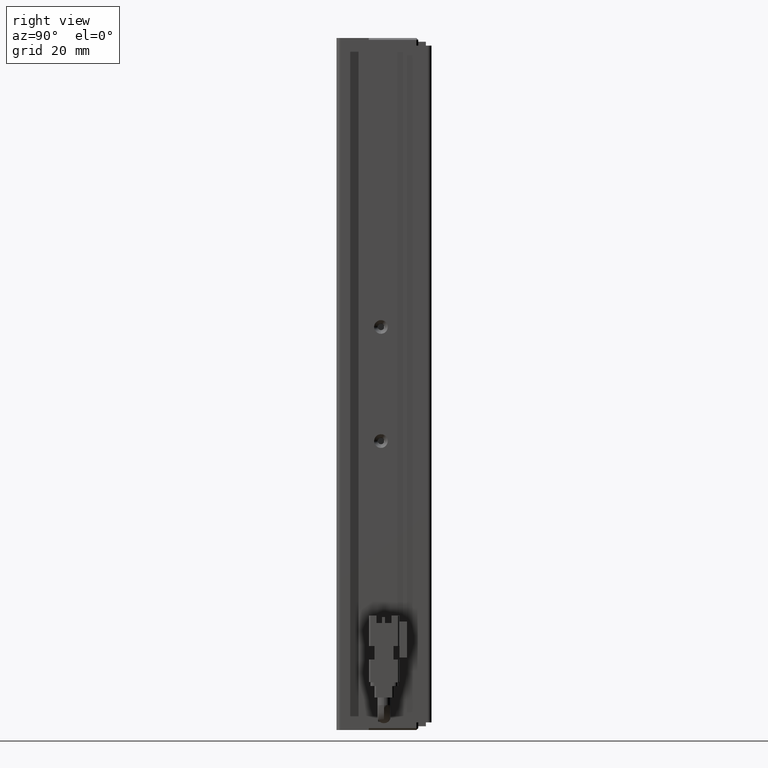
[diagram: clean part render]
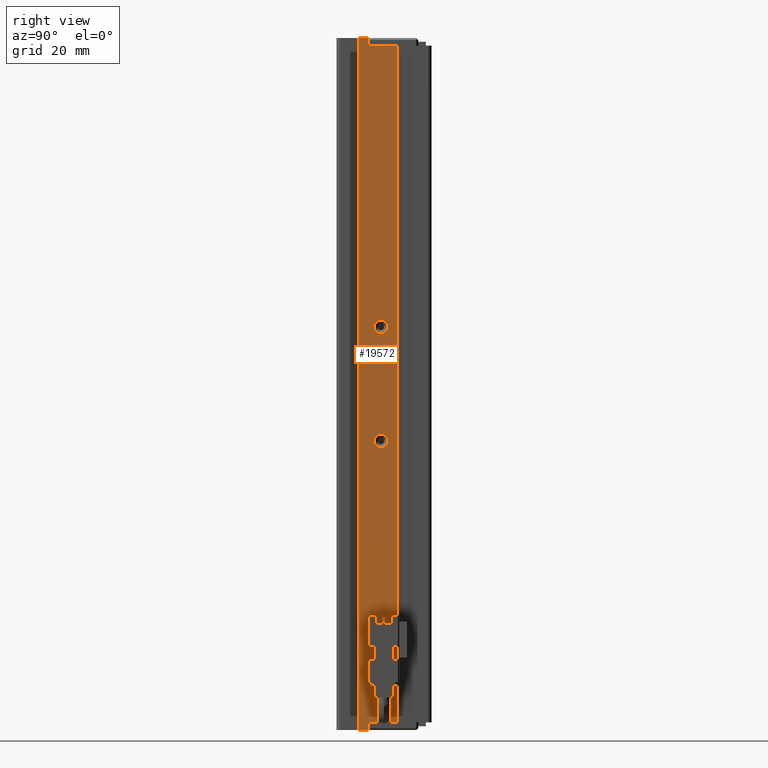
[diagram: same view with one face highlighted and labeled with its STEP entity id]
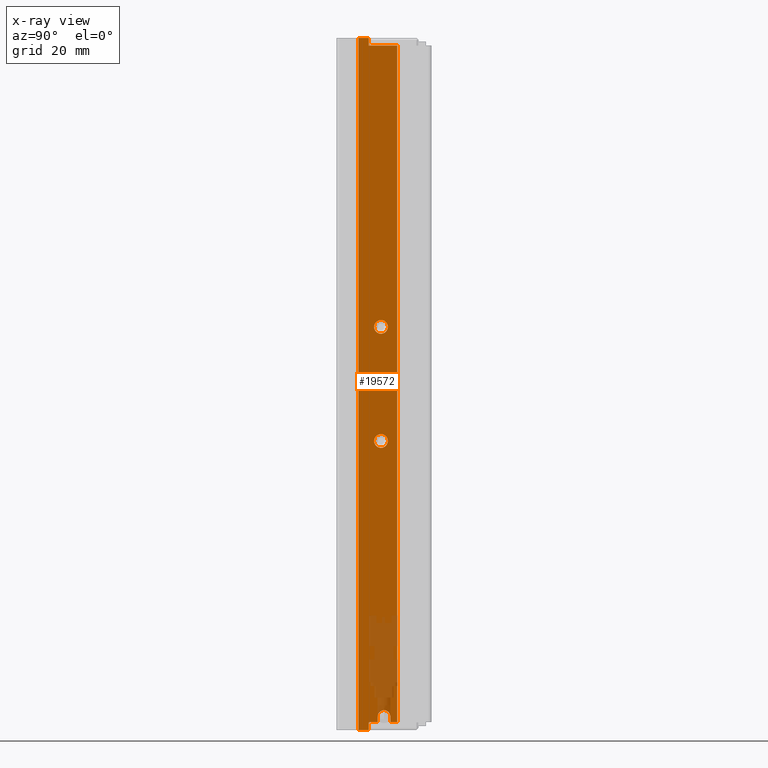
[diagram: x-ray of the same camera — body ghosted, the highlighted face saturated]
A machine part, right view. The second image highlights one B-rep face of the part: STEP entity #19572.
The next image is the same camera in x-ray: the body ghosted, the highlighted face saturated — about 8% of this face is hidden behind the body in this view.
In plain terms, the highlighted planar face has unit normal (-1, 0, 0).
Its self-contained STEP definition (entity closure, byte-faithful):
#37 = VERTEX_POINT ( 'NONE', #40231 ) ;
#223 = CARTESIAN_POINT ( 'NONE',  ( 55.92537974683542500, 26.69594479660386800, -204.0000000000000300 ) ) ;
#698 = DIRECTION ( 'NONE',  ( -0.0000000000000000000, 0.0000000000000000000, 1.000000000000000000 ) ) ;
#728 = VECTOR ( 'NONE', #2167, 1000.000000000000000 ) ;
#885 = DIRECTION ( 'NONE',  ( 1.394554826879015700E-015, 1.000000000000000000, -0.0000000000000000000 ) ) ;
#933 = DIRECTION ( 'NONE',  ( -0.0000000000000000000, 0.0000000000000000000, 1.000000000000000000 ) ) ;
#1114 = CARTESIAN_POINT ( 'NONE',  ( 55.92537974687862600, 22.39594479660386700, -101.8000000000734000 ) ) ;
#1247 = VECTOR ( 'NONE', #9128, 1000.000000000000000 ) ;
#1529 = VERTEX_POINT ( 'NONE', #10067 ) ;
#1636 = VERTEX_POINT ( 'NONE', #36715 ) ;
#1970 = CARTESIAN_POINT ( 'NONE',  ( 55.92537974687862600, 22.39594479660386700, -98.19999999992660400 ) ) ;
#2167 = DIRECTION ( 'NONE',  ( -0.0000000000000000000, -2.238352872228144400E-015, -1.000000000000000000 ) ) ;
#2511 = VERTEX_POINT ( 'NONE', #36615 ) ;
#2731 = LINE ( 'NONE', #40976, #10506 ) ;
#4946 = VERTEX_POINT ( 'NONE', #26370 ) ;
#5529 = DIRECTION ( 'NONE',  ( -1.394554826879015700E-015, -1.000000000000000000, 0.0000000000000000000 ) ) ;
#5931 = CARTESIAN_POINT ( 'NONE',  ( 55.92537974683541100, 7.083797468354417100, -24.00000000000000700 ) ) ;
#6216 = CARTESIAN_POINT ( 'NONE',  ( 55.92537974683539700, 21.54594479660386200, -202.4500000000000200 ) ) ;
#6323 = CARTESIAN_POINT ( 'NONE',  ( 55.92537974683543200, 19.19594479660386500, -204.0000000000000300 ) ) ;
#6339 = CARTESIAN_POINT ( 'NONE',  ( 55.92537974683543900, 26.69594479660386800, -24.00000000000000700 ) ) ;
#7905 = VERTEX_POINT ( 'NONE', #6323 ) ;
#8090 = LINE ( 'NONE', #9554, #25863 ) ;
#8138 = CARTESIAN_POINT ( 'NONE',  ( 55.92537974683539700, 23.19594479660386500, -202.4500000000000200 ) ) ;
#8381 = LINE ( 'NONE', #32162, #26144 ) ;
#8940 = AXIS2_PLACEMENT_3D ( 'NONE', #34429, #14307, #37807 ) ;
#9128 = DIRECTION ( 'NONE',  ( 0.0000000000000000000, 1.000000000000000000, -0.0000000000000000000 ) ) ;
#9267 = LINE ( 'NONE', #9415, #17096 ) ;
#9272 = DIRECTION ( 'NONE',  ( -1.394554826879015700E-015, -1.000000000000000000, 0.0000000000000000000 ) ) ;
#9415 = CARTESIAN_POINT ( 'NONE',  ( 55.92537974683542500, 16.49594479660387200, -24.00000000000000700 ) ) ;
#9524 = EDGE_CURVE ( 'NONE', #1636, #35084, #8381, .T. ) ;
#9554 = CARTESIAN_POINT ( 'NONE',  ( 55.92537974683541100, 7.083797468354417100, -204.0000000000000300 ) ) ;
#9684 = DIRECTION ( 'NONE',  ( -0.0000000000000000000, -0.0000000000000000000, -1.000000000000000000 ) ) ;
#10067 = CARTESIAN_POINT ( 'NONE',  ( 55.92537974683542500, 19.19594479660386500, -25.99999999999999600 ) ) ;
#10088 = EDGE_CURVE ( 'NONE', #27473, #13145, #25019, .T. ) ;
#10506 = VECTOR ( 'NONE', #933, 1000.000000000000000 ) ;
#10687 = LINE ( 'NONE', #35444, #28513 ) ;
#11311 = ORIENTED_EDGE ( 'NONE', *, *, #29670, .F. ) ;
#11438 = ORIENTED_EDGE ( 'NONE', *, *, #28197, .F. ) ;
#11444 = DIRECTION ( 'NONE',  ( 0.0000000000000000000, 1.000000000000000000, 0.0000000000000000000 ) ) ;
#11996 = ORIENTED_EDGE ( 'NONE', *, *, #12880, .F. ) ;
#12406 = ORIENTED_EDGE ( 'NONE', *, *, #12596, .F. ) ;
#12596 = EDGE_CURVE ( 'NONE', #38935, #27449, #19617, .T. ) ;
#12632 = ORIENTED_EDGE ( 'NONE', *, *, #16279, .F. ) ;
#12880 = EDGE_CURVE ( 'NONE', #35786, #18051, #8090, .T. ) ;
#13145 = VERTEX_POINT ( 'NONE', #17448 ) ;
#13785 = ORIENTED_EDGE ( 'NONE', *, *, #34908, .T. ) ;
#14307 = DIRECTION ( 'NONE',  ( 1.000000000000000000, 0.0000000000000000000, 0.0000000000000000000 ) ) ;
#14514 = CARTESIAN_POINT ( 'NONE',  ( 55.92537974687862600, 22.39594479660386700, -100.0000000000000000 ) ) ;
#14714 = FACE_BOUND ( 'NONE', #29085, .T. ) ;
#15252 = EDGE_CURVE ( 'NONE', #31191, #7905, #2731, .T. ) ;
#15771 = FACE_BOUND ( 'NONE', #32251, .T. ) ;
#16279 = EDGE_CURVE ( 'NONE', #1636, #7905, #10687, .T. ) ;
#16733 = CIRCLE ( 'NONE', #23065, 1.799999999989254600 ) ;
#17096 = VECTOR ( 'NONE', #36191, 1000.000000000000000 ) ;
#17411 = ORIENTED_EDGE ( 'NONE', *, *, #29975, .F. ) ;
#17448 = CARTESIAN_POINT ( 'NONE',  ( 55.92537974682178300, 22.39594479660386700, -131.7999999999892700 ) ) ;
#17674 = EDGE_CURVE ( 'NONE', #1529, #43007, #33441, .T. ) ;
#17866 = DIRECTION ( 'NONE',  ( 1.000000000000000000, 0.0000000000000000000, 0.0000000000000000000 ) ) ;
#17922 = DIRECTION ( 'NONE',  ( 0.0000000000000000000, 0.0000000000000000000, -1.000000000000000000 ) ) ;
#17937 = AXIS2_PLACEMENT_3D ( 'NONE', #14514, #38022, #17922 ) ;
#18051 = VERTEX_POINT ( 'NONE', #19291 ) ;
#18431 = LINE ( 'NONE', #42086, #728 ) ;
#18766 = ORIENTED_EDGE ( 'NONE', *, *, #10088, .F. ) ;
#18850 = AXIS2_PLACEMENT_3D ( 'NONE', #8138, #31541, #11444 ) ;
#18861 = LINE ( 'NONE', #20878, #36688 ) ;
#19291 = CARTESIAN_POINT ( 'NONE',  ( 55.92537974683541100, 24.84594479660386300, -204.0000000000000300 ) ) ;
#19455 = CIRCLE ( 'NONE', #18850, 1.650000000000002100 ) ;
#19572 = ADVANCED_FACE ( 'NONE', ( #15771, #23623, #14714 ), #29171, .F. ) ;
#19617 = CIRCLE ( 'NONE', #17937, 1.800000000073395800 ) ;
#19703 = ORIENTED_EDGE ( 'NONE', *, *, #9524, .T. ) ;
#20878 = CARTESIAN_POINT ( 'NONE',  ( 55.92537974683541100, 7.083797468354417100, -26.00000000000001100 ) ) ;
#22063 = CARTESIAN_POINT ( 'NONE',  ( 55.92537974683542500, 19.19594479660386500, -23.99999999999999300 ) ) ;
#22786 = VERTEX_POINT ( 'NONE', #39024 ) ;
#23065 = AXIS2_PLACEMENT_3D ( 'NONE', #37975, #17866, #41270 ) ;
#23260 = ORIENTED_EDGE ( 'NONE', *, *, #28846, .F. ) ;
#23499 = VECTOR ( 'NONE', #5529, 1000.000000000000000 ) ;
#23623 = FACE_OUTER_BOUND ( 'NONE', #30660, .T. ) ;
#24533 = VECTOR ( 'NONE', #698, 1000.000000000000000 ) ;
#24785 = AXIS2_PLACEMENT_3D ( 'NONE', #31031, #30933, #30878 ) ;
#24892 = CARTESIAN_POINT ( 'NONE',  ( 55.92537974682178300, 22.39594479660386700, -128.2000000000107600 ) ) ;
#25019 = CIRCLE ( 'NONE', #24785, 1.799999999989254600 ) ;
#25759 = EDGE_CURVE ( 'NONE', #1529, #37, #18861, .T. ) ;
#25787 = CARTESIAN_POINT ( 'NONE',  ( 55.92537974683542500, 7.083797468354437600, -24.00000000000000700 ) ) ;
#25863 = VECTOR ( 'NONE', #32808, 1000.000000000000000 ) ;
#26144 = VECTOR ( 'NONE', #32641, 1000.000000000000000 ) ;
#26370 = CARTESIAN_POINT ( 'NONE',  ( 55.92537974683542500, 16.49594479660387200, -23.99999999999999300 ) ) ;
#27449 = VERTEX_POINT ( 'NONE', #1114 ) ;
#27473 = VERTEX_POINT ( 'NONE', #24892 ) ;
#27882 = LINE ( 'NONE', #25787, #1247 ) ;
#28197 = EDGE_CURVE ( 'NONE', #31191, #22786, #32432, .T. ) ;
#28513 = VECTOR ( 'NONE', #32055, 1000.000000000000000 ) ;
#28846 = EDGE_CURVE ( 'NONE', #22786, #4946, #9267, .T. ) ;
#28920 = CARTESIAN_POINT ( 'NONE',  ( 55.92537974683541100, 7.083797468354417100, -206.0000000000000300 ) ) ;
#29085 = EDGE_LOOP ( 'NONE', ( #37129, #12406 ) ) ;
#29171 = PLANE ( 'NONE',  #30305 ) ;
#29330 = DIRECTION ( 'NONE',  ( -1.000000000000000000, 1.394554826879015700E-015, 0.0000000000000000000 ) ) ;
#29670 = EDGE_CURVE ( 'NONE', #2511, #35084, #19455, .T. ) ;
#29975 = EDGE_CURVE ( 'NONE', #37, #35786, #40901, .T. ) ;
#30254 = EDGE_CURVE ( 'NONE', #13145, #27473, #16733, .T. ) ;
#30305 = AXIS2_PLACEMENT_3D ( 'NONE', #5931, #29330, #9272 ) ;
#30660 = EDGE_LOOP ( 'NONE', ( #19703, #11311, #13785, #11996, #17411, #30859, #40518, #42844, #23260, #11438, #32454, #12632 ) ) ;
#30859 = ORIENTED_EDGE ( 'NONE', *, *, #25759, .F. ) ;
#30878 = DIRECTION ( 'NONE',  ( 0.0000000000000000000, 0.0000000000000000000, -1.000000000000000000 ) ) ;
#30933 = DIRECTION ( 'NONE',  ( 1.000000000000000000, 0.0000000000000000000, 0.0000000000000000000 ) ) ;
#30955 = VECTOR ( 'NONE', #9684, 1000.000000000000000 ) ;
#31031 = CARTESIAN_POINT ( 'NONE',  ( 55.92537974682178300, 22.39594479660386700, -130.0000000000000000 ) ) ;
#31191 = VERTEX_POINT ( 'NONE', #34064 ) ;
#31476 = CIRCLE ( 'NONE', #8940, 1.800000000073395800 ) ;
#31541 = DIRECTION ( 'NONE',  ( 1.000000000000000000, 5.687617954022316600E-016, -0.0000000000000000000 ) ) ;
#32055 = DIRECTION ( 'NONE',  ( -1.394554826879015700E-015, -1.000000000000000000, 0.0000000000000000000 ) ) ;
#32162 = CARTESIAN_POINT ( 'NONE',  ( 55.92537974683540400, 21.54594479660386600, -204.0000000000000300 ) ) ;
#32251 = EDGE_LOOP ( 'NONE', ( #36767, #18766 ) ) ;
#32328 = EDGE_CURVE ( 'NONE', #4946, #43007, #27882, .T. ) ;
#32432 = LINE ( 'NONE', #28920, #23499 ) ;
#32454 = ORIENTED_EDGE ( 'NONE', *, *, #15252, .T. ) ;
#32641 = DIRECTION ( 'NONE',  ( -0.0000000000000000000, -2.238352872228144400E-015, 1.000000000000000000 ) ) ;
#32702 = EDGE_CURVE ( 'NONE', #27449, #38935, #31476, .T. ) ;
#32808 = DIRECTION ( 'NONE',  ( -1.394554826879015700E-015, -1.000000000000000000, 0.0000000000000000000 ) ) ;
#33441 = LINE ( 'NONE', #40701, #24533 ) ;
#34064 = CARTESIAN_POINT ( 'NONE',  ( 55.92537974683543200, 19.19594479660386500, -206.0000000000000300 ) ) ;
#34429 = CARTESIAN_POINT ( 'NONE',  ( 55.92537974687862600, 22.39594479660386700, -100.0000000000000000 ) ) ;
#34908 = EDGE_CURVE ( 'NONE', #2511, #18051, #18431, .T. ) ;
#35084 = VERTEX_POINT ( 'NONE', #6216 ) ;
#35444 = CARTESIAN_POINT ( 'NONE',  ( 55.92537974683541100, 7.083797468354417100, -204.0000000000000300 ) ) ;
#35786 = VERTEX_POINT ( 'NONE', #223 ) ;
#36191 = DIRECTION ( 'NONE',  ( 0.0000000000000000000, 0.0000000000000000000, 1.000000000000000000 ) ) ;
#36615 = CARTESIAN_POINT ( 'NONE',  ( 55.92537974683539700, 24.84594479660386700, -202.4500000000000200 ) ) ;
#36688 = VECTOR ( 'NONE', #885, 1000.000000000000000 ) ;
#36715 = CARTESIAN_POINT ( 'NONE',  ( 55.92537974683542500, 21.54594479660386200, -204.0000000000000300 ) ) ;
#36767 = ORIENTED_EDGE ( 'NONE', *, *, #30254, .F. ) ;
#37129 = ORIENTED_EDGE ( 'NONE', *, *, #32702, .F. ) ;
#37807 = DIRECTION ( 'NONE',  ( 0.0000000000000000000, 0.0000000000000000000, -1.000000000000000000 ) ) ;
#37975 = CARTESIAN_POINT ( 'NONE',  ( 55.92537974682178300, 22.39594479660386700, -130.0000000000000000 ) ) ;
#38022 = DIRECTION ( 'NONE',  ( 1.000000000000000000, 0.0000000000000000000, 0.0000000000000000000 ) ) ;
#38935 = VERTEX_POINT ( 'NONE', #1970 ) ;
#39024 = CARTESIAN_POINT ( 'NONE',  ( 55.92537974683542500, 16.49594479660387200, -206.0000000000000300 ) ) ;
#40231 = CARTESIAN_POINT ( 'NONE',  ( 55.92537974683543900, 26.69594479660386800, -25.99999999999999600 ) ) ;
#40518 = ORIENTED_EDGE ( 'NONE', *, *, #17674, .T. ) ;
#40701 = CARTESIAN_POINT ( 'NONE',  ( 55.92537974683542500, 19.19594479660386500, -24.00000000000000700 ) ) ;
#40901 = LINE ( 'NONE', #6339, #30955 ) ;
#40976 = CARTESIAN_POINT ( 'NONE',  ( 55.92537974683543200, 19.19594479660386500, -24.00000000000000700 ) ) ;
#41270 = DIRECTION ( 'NONE',  ( 0.0000000000000000000, 0.0000000000000000000, -1.000000000000000000 ) ) ;
#42086 = CARTESIAN_POINT ( 'NONE',  ( 55.92537974683539700, 24.84594479660386300, -204.0000000000000300 ) ) ;
#42844 = ORIENTED_EDGE ( 'NONE', *, *, #32328, .F. ) ;
#43007 = VERTEX_POINT ( 'NONE', #22063 ) ;